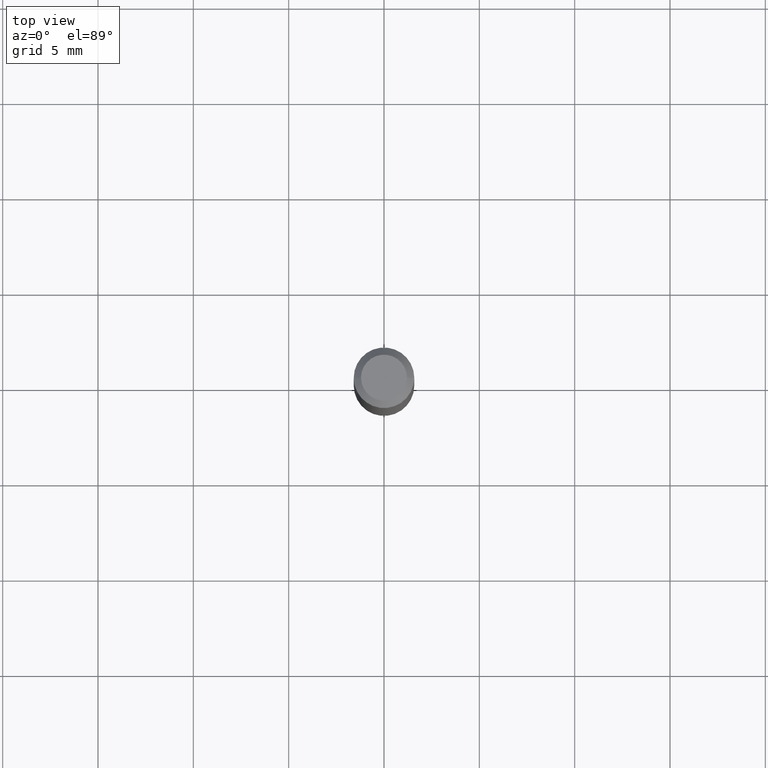
[diagram: clean part render]
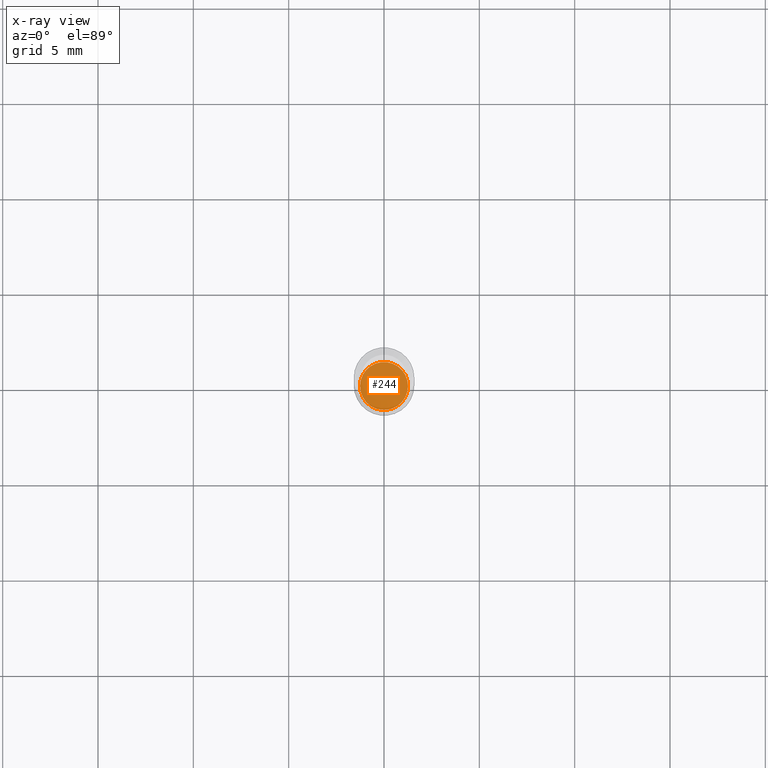
[diagram: x-ray — body ghosted, one internal face saturated and labeled with its STEP entity id]
A machine part, top view, then the same camera in x-ray: the body is ghosted and one INTERNAL B-rep face — a face not visible from any outside direction — is saturated and labeled: STEP entity #244.
In plain terms, the highlighted planar face has unit normal (-0, 0, 1).
Its self-contained STEP definition (entity closure, byte-faithful):
#3 = DIRECTION ( 'NONE',  ( -2.445468806185136597E-29, 3.491481338843145583E-15, 1.000000000000000000 ) ) ;
#21 = AXIS2_PLACEMENT_3D ( 'NONE', #34, #3, #441 ) ;
#34 = CARTESIAN_POINT ( 'NONE',  ( 2.445468806185136877E-29, -3.491481338843145977E-15, -1.000000000000000222 ) ) ;
#38 = CARTESIAN_POINT ( 'NONE',  ( 0.04950000000000000233, -3.837137991388616305E-15, -1.000000000000000222 ) ) ;
#43 = PLANE ( 'NONE',  #315 ) ;
#76 = EDGE_CURVE ( 'NONE', #387, #229, #370, .T. ) ;
#161 = AXIS2_PLACEMENT_3D ( 'NONE', #368, #337, #236 ) ;
#195 = ORIENTED_EDGE ( 'NONE', *, *, #212, .F. ) ;
#196 = CIRCLE ( 'NONE', #161, 0.04950000000000000233 ) ;
#212 = EDGE_CURVE ( 'NONE', #229, #387, #196, .T. ) ;
#217 = CARTESIAN_POINT ( 'NONE',  ( 2.445468806185136877E-29, -3.491481338843145977E-15, -1.000000000000000222 ) ) ;
#229 = VERTEX_POINT ( 'NONE', #412 ) ;
#236 = DIRECTION ( 'NONE',  ( 1.000000000000000000, -6.982962677686264344E-15, 0.000000000000000000 ) ) ;
#244 = ADVANCED_FACE ( 'NONE', ( #367 ), #43, .F. ) ;
#250 = ORIENTED_EDGE ( 'NONE', *, *, #76, .F. ) ;
#255 = DIRECTION ( 'NONE',  ( -2.438088387897960049E-29, 3.491481338843145188E-15, 1.000000000000000000 ) ) ;
#315 = AXIS2_PLACEMENT_3D ( 'NONE', #217, #255, #347 ) ;
#337 = DIRECTION ( 'NONE',  ( -2.445468806185136597E-29, 3.491481338843145583E-15, 1.000000000000000000 ) ) ;
#347 = DIRECTION ( 'NONE',  ( 1.000000000000000000, -6.982962677686265922E-15, 4.876176775795935793E-29 ) ) ;
#367 = FACE_OUTER_BOUND ( 'NONE', #435, .T. ) ;
#368 = CARTESIAN_POINT ( 'NONE',  ( 2.445468806185136877E-29, -3.491481338843145977E-15, -1.000000000000000222 ) ) ;
#370 = CIRCLE ( 'NONE', #21, 0.04950000000000000233 ) ;
#387 = VERTEX_POINT ( 'NONE', #38 ) ;
#412 = CARTESIAN_POINT ( 'NONE',  ( -0.04950000000000000233, -3.137113457467784872E-15, -1.000000000000000222 ) ) ;
#435 = EDGE_LOOP ( 'NONE', ( #250, #195 ) ) ;
#441 = DIRECTION ( 'NONE',  ( 1.000000000000000000, -6.982962677686264344E-15, 0.000000000000000000 ) ) ;